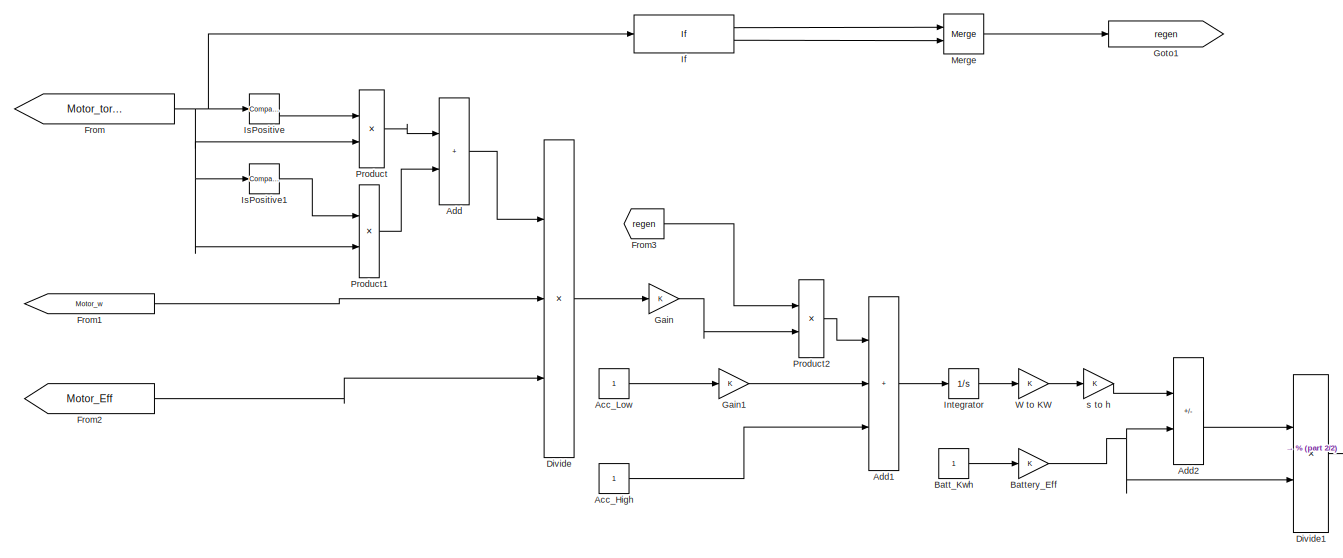
[diagram: root canvas - part 1/2, most of the canvas]
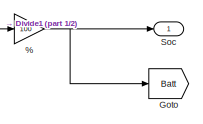
[diagram: root canvas - part 2/2, bottom right region]
MODEL slx_8725891b7203
KIND model
CONFIG AbsTol = auto
CONFIG EnableMultiTasking = off
CONFIG FixedStep = auto
CONFIG MaxStep = auto
CONFIG MinStep = auto
CONFIG RelTol = 1e-3
CONFIG SampleTimeConstraint = Unconstrained
CONFIG Solver = VariableStepAuto
CONFIG SolverName = VariableStepAuto
CONFIG StartTime = 0.0
CONFIG StopTime = 10.0
BLOCK [Gain] %
  Gain = 100
BLOCK [Constant] Acc_High
BLOCK [Constant] Acc_Low
BLOCK [Sum] Add
  IconShape = rectangular
  Ports = [2, 1]
BLOCK [Sum] Add1
  IconShape = rectangular
  Inputs = +++
  Ports = [3, 1]
BLOCK [Sum] Add2
  IconShape = rectangular
  Inputs = -+
  Ports = [2, 1]
BLOCK [Constant] Batt_Kwh
BLOCK [Gain] Battery_Eff
BLOCK [Product] Divide
  Inputs = **/
  Ports = [3, 1]
BLOCK [Product] Divide1
  Inputs = */
  Ports = [2, 1]
BLOCK [From] From
  GotoTag = Motor_torque
BLOCK [From] From1
  GotoTag = Motor_w
BLOCK [From] From2
  GotoTag = Motor_Eff
BLOCK [From] From3
  GotoTag = regen
BLOCK [Gain] Gain
BLOCK [Gain] Gain1
BLOCK [Goto] Goto
  GotoTag = Batt
BLOCK [Goto] Goto1
  GotoTag = regen
BLOCK [If] If
  Ports = [1, 2]
BLOCK [Integrator] Integrator
  Ports = [1, 1]
BLOCK [Reference] IsPositive  REF=simulink/Logic and Bit
Operations/Compare
To Zero
  Ports = [1, 1]
  SourceBlock = simulink/Logic and Bit\nOperations/Compare\nTo Zero
  SourceProductBaseCode = SL
  SourceType = Compare To Zero
BLOCK [Reference] IsPositive1  REF=simulink/Logic and Bit
Operations/Compare
To Zero
  Ports = [1, 1]
  SourceBlock = simulink/Logic and Bit\nOperations/Compare\nTo Zero
  SourceProductBaseCode = SL
  SourceType = Compare To Zero
BLOCK [Merge] Merge
  Ports = [2, 1]
BLOCK [Product] Product
  Ports = [2, 1]
BLOCK [Product] Product1
  Ports = [2, 1]
BLOCK [Product] Product2
  Ports = [2, 1]
BLOCK [Outport] Soc
BLOCK [Gain] W to KW
BLOCK [Gain] s to h
NET %:1 -> Goto:1, Soc:1
LINE Acc_High:1 -> Add1:3
LINE Acc_Low:1 -> Gain1:1
LINE Add1:1 -> Integrator:1
LINE Add2:1 -> Divide1:1
LINE Add:1 -> Divide:1
LINE Batt_Kwh:1 -> Battery_Eff:1
NET Battery_Eff:1 -> Add2:2, Divide1:2
LINE Divide1:1 -> %:1
LINE Divide:1 -> Gain:1
LINE From1:1 -> Divide:2
LINE From2:1 -> Divide:3
LINE From3:1 -> Product2:1
NET From:1 -> If:1, IsPositive1:1, IsPositive:1, Product1:2, Product:2
LINE Gain1:1 -> Add1:2
LINE Gain:1 -> Product2:2
LINE If:1 -> Merge:1
LINE If:2 -> Merge:2
LINE Integrator:1 -> W to KW:1
LINE IsPositive1:1 -> Product1:1
LINE IsPositive:1 -> Product:1
LINE Merge:1 -> Goto1:1
LINE Product1:1 -> Add:2
LINE Product2:1 -> Add1:1
LINE Product:1 -> Add:1
LINE W to KW:1 -> s to h:1
LINE s to h:1 -> Add2:1
note: NET lines group one-source signal fan-out (src -> all destinations, sorted); 1:1 wires keep LINE
